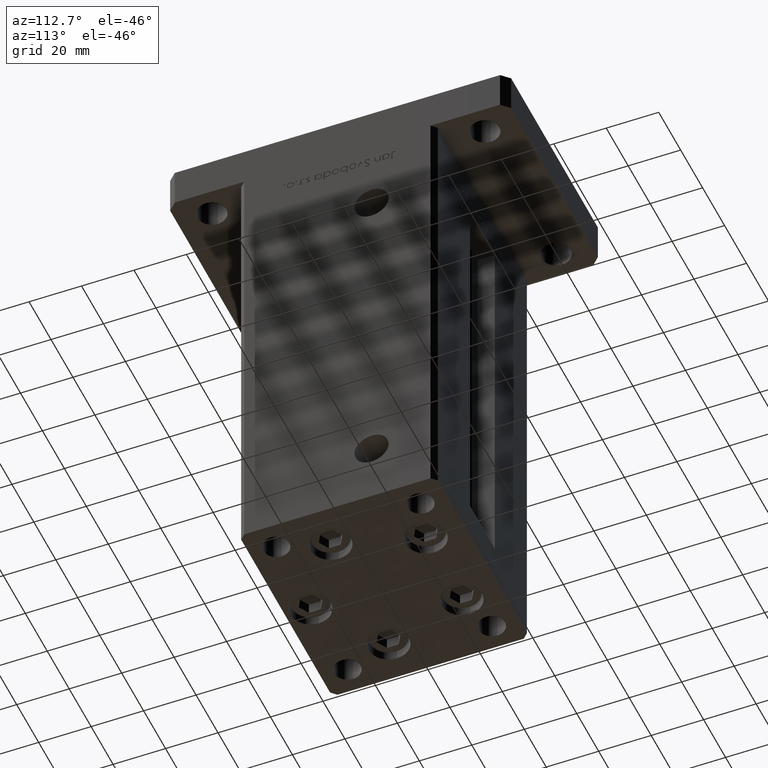
[diagram: clean part render]
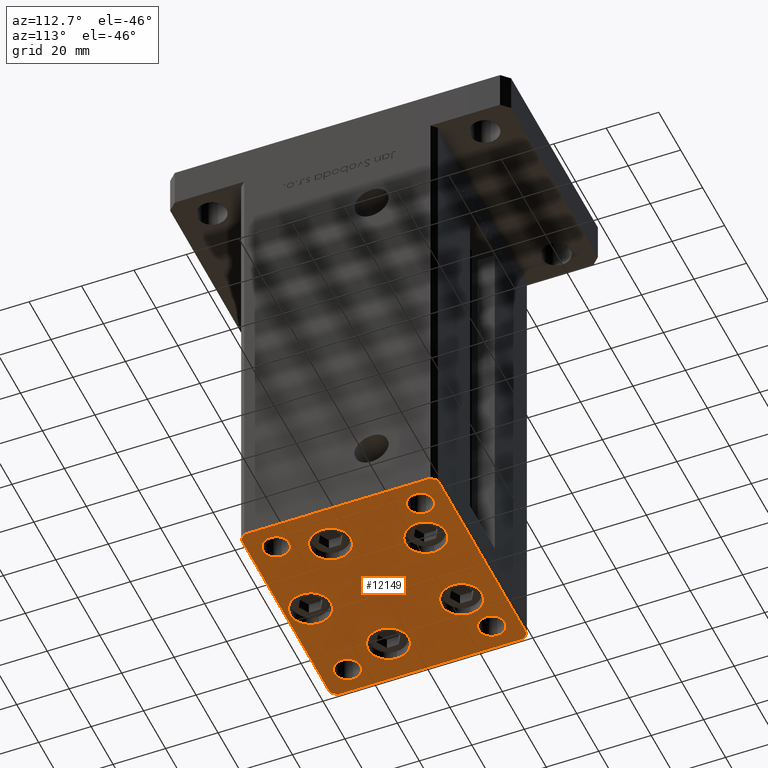
[diagram: same view with one face highlighted and labeled with its STEP entity id]
A machine part, auxiliary view. The second image highlights one B-rep face of the part: STEP entity #12149.
In plain terms, the highlighted planar face has unit normal (0, 0, -1).
Its self-contained STEP definition (entity closure, byte-faithful):
#265 = EDGE_CURVE ( 'NONE', #10591, #37965, #37742, .T. ) ;
#270 = DIRECTION ( 'NONE',  ( 1.000000000000000000, 0.000000000000000000, 0.000000000000000000 ) ) ;
#714 = VERTEX_POINT ( 'NONE', #5208 ) ;
#1335 = VERTEX_POINT ( 'NONE', #14514 ) ;
#1385 = CARTESIAN_POINT ( 'NONE',  ( 32.50000000000000000, 27.49999999999999645, 0.000000000000000000 ) ) ;
#1402 = ORIENTED_EDGE ( 'NONE', *, *, #7961, .T. ) ;
#1739 = AXIS2_PLACEMENT_3D ( 'NONE', #11640, #44157, #32760 ) ;
#1909 = DIRECTION ( 'NONE',  ( 1.000000000000000000, 0.000000000000000000, 0.000000000000000000 ) ) ;
#1948 = CARTESIAN_POINT ( 'NONE',  ( -40.49999999999999289, -37.50000000000002132, 0.000000000000000000 ) ) ;
#1989 = EDGE_LOOP ( 'NONE', ( #23044, #18459 ) ) ;
#1998 = ORIENTED_EDGE ( 'NONE', *, *, #35123, .T. ) ;
#2089 = DIRECTION ( 'NONE',  ( -1.000000000000000000, -3.426614273534436165E-16, 0.000000000000000000 ) ) ;
#2834 = ORIENTED_EDGE ( 'NONE', *, *, #26432, .T. ) ;
#2890 = CARTESIAN_POINT ( 'NONE',  ( 40.49999999999991473, 37.50000000000000711, 0.000000000000000000 ) ) ;
#3804 = CARTESIAN_POINT ( 'NONE',  ( 42.49999999999992895, 35.50000000000000000, 0.000000000000000000 ) ) ;
#4438 = EDGE_CURVE ( 'NONE', #21149, #35975, #44756, .T. ) ;
#4503 = DIRECTION ( 'NONE',  ( 1.000000000000000000, 0.000000000000000000, 0.000000000000000000 ) ) ;
#4515 = VECTOR ( 'NONE', #47894, 1000.000000000000000 ) ;
#4786 = DIRECTION ( 'NONE',  ( 0.000000000000000000, -0.000000000000000000, -1.000000000000000000 ) ) ;
#5208 = CARTESIAN_POINT ( 'NONE',  ( -42.50000000000000000, -35.50000000000000711, 0.000000000000000000 ) ) ;
#5430 = FACE_BOUND ( 'NONE', #1989, .T. ) ;
#5504 = ORIENTED_EDGE ( 'NONE', *, *, #37134, .T. ) ;
#5853 = CARTESIAN_POINT ( 'NONE',  ( 26.39865316429776954, -9.333333333333330373, 0.000000000000000000 ) ) ;
#6002 = ORIENTED_EDGE ( 'NONE', *, *, #24083, .T. ) ;
#6110 = DIRECTION ( 'NONE',  ( 1.000000000000000000, 0.000000000000000000, 0.000000000000000000 ) ) ;
#6248 = DIRECTION ( 'NONE',  ( 0.000000000000000000, -0.000000000000000000, -1.000000000000000000 ) ) ;
#6811 = VERTEX_POINT ( 'NONE', #39123 ) ;
#7185 = CARTESIAN_POINT ( 'NONE',  ( -32.50000000000000000, -27.49999999999999645, 0.000000000000000000 ) ) ;
#7797 = CIRCLE ( 'NONE', #1739, 5.000000000000000888 ) ;
#7961 = EDGE_CURVE ( 'NONE', #33107, #20676, #19266, .T. ) ;
#8758 = ORIENTED_EDGE ( 'NONE', *, *, #50116, .T. ) ;
#9707 = VERTEX_POINT ( 'NONE', #34886 ) ;
#10048 = CARTESIAN_POINT ( 'NONE',  ( -26.39865316429776954, -9.333333333333337478, 0.000000000000000000 ) ) ;
#10055 = DIRECTION ( 'NONE',  ( 0.7071067811865474617, 0.7071067811865474617, 0.000000000000000000 ) ) ;
#10085 = CARTESIAN_POINT ( 'NONE',  ( 16.32291334290542295, 22.75000000000000000, 0.000000000000000000 ) ) ;
#10393 = ORIENTED_EDGE ( 'NONE', *, *, #17101, .T. ) ;
#10514 = VERTEX_POINT ( 'NONE', #27964 ) ;
#10549 = DIRECTION ( 'NONE',  ( 0.000000000000000000, -0.000000000000000000, -1.000000000000000000 ) ) ;
#10567 = FACE_BOUND ( 'NONE', #45288, .T. ) ;
#10584 = CARTESIAN_POINT ( 'NONE',  ( -16.32291334290543006, 22.74999999999999645, 0.000000000000000000 ) ) ;
#10591 = VERTEX_POINT ( 'NONE', #25778 ) ;
#10609 = VERTEX_POINT ( 'NONE', #51499 ) ;
#10650 = VERTEX_POINT ( 'NONE', #35487 ) ;
#10954 = EDGE_LOOP ( 'NONE', ( #5504, #49684 ) ) ;
#11011 = CARTESIAN_POINT ( 'NONE',  ( 26.39865316429776954, -9.333333333333330373, 0.000000000000000000 ) ) ;
#11216 = ORIENTED_EDGE ( 'NONE', *, *, #22793, .T. ) ;
#11267 = DIRECTION ( 'NONE',  ( 1.000000000000000000, 0.000000000000000000, 0.000000000000000000 ) ) ;
#11503 = DIRECTION ( 'NONE',  ( 0.000000000000000000, -0.000000000000000000, -1.000000000000000000 ) ) ;
#11640 = CARTESIAN_POINT ( 'NONE',  ( -32.50000000000000000, 27.50000000000000355, 0.000000000000000000 ) ) ;
#12017 = CARTESIAN_POINT ( 'NONE',  ( -27.50000000000000000, -27.49999999999999645, 0.000000000000000000 ) ) ;
#12019 = AXIS2_PLACEMENT_3D ( 'NONE', #43064, #10549, #27069 ) ;
#12149 = ADVANCED_FACE ( 'NONE', ( #26296, #34436, #5430, #34959, #14359, #51496, #43341, #10567, #27087, #18957 ), #35484, .T. ) ;
#12542 = ORIENTED_EDGE ( 'NONE', *, *, #24576, .T. ) ;
#12815 = DIRECTION ( 'NONE',  ( -0.7071067811865463515, -0.7071067811865487940, 0.000000000000000000 ) ) ;
#13028 = CARTESIAN_POINT ( 'NONE',  ( 7.750000000000003553, -28.00000000000000000, 0.000000000000000000 ) ) ;
#13245 = EDGE_CURVE ( 'NONE', #38086, #24435, #24101, .T. ) ;
#13258 = EDGE_CURVE ( 'NONE', #48522, #40830, #7797, .T. ) ;
#13507 = CARTESIAN_POINT ( 'NONE',  ( 3.429011037612589276E-15, -28.00000000000000000, 0.000000000000000000 ) ) ;
#13577 = EDGE_CURVE ( 'NONE', #37965, #10591, #42427, .T. ) ;
#13626 = ORIENTED_EDGE ( 'NONE', *, *, #16837, .T. ) ;
#14026 = VECTOR ( 'NONE', #10055, 1000.000000000000114 ) ;
#14036 = LINE ( 'NONE', #38179, #16689 ) ;
#14181 = EDGE_CURVE ( 'NONE', #20676, #39960, #14551, .T. ) ;
#14359 = FACE_BOUND ( 'NONE', #30958, .T. ) ;
#14361 = DIRECTION ( 'NONE',  ( 0.000000000000000000, -0.000000000000000000, -1.000000000000000000 ) ) ;
#14514 = CARTESIAN_POINT ( 'NONE',  ( -34.14865316429776954, -9.333333333333337478, 0.000000000000000000 ) ) ;
#14551 = LINE ( 'NONE', #2890, #28127 ) ;
#14826 = CARTESIAN_POINT ( 'NONE',  ( 42.50000000000000711, -35.50000000000000000, 0.000000000000000000 ) ) ;
#14884 = CARTESIAN_POINT ( 'NONE',  ( 0.000000000000000000, 0.000000000000000000, 0.000000000000000000 ) ) ;
#14926 = EDGE_CURVE ( 'NONE', #50900, #6811, #47505, .T. ) ;
#14954 = CARTESIAN_POINT ( 'NONE',  ( 32.50000000000000000, -27.49999999999999645, 0.000000000000000000 ) ) ;
#15771 = EDGE_LOOP ( 'NONE', ( #8758, #45861 ) ) ;
#16033 = CARTESIAN_POINT ( 'NONE',  ( 27.50000000000000355, 27.49999999999999645, 0.000000000000000000 ) ) ;
#16689 = VECTOR ( 'NONE', #42496, 1000.000000000000000 ) ;
#16837 = EDGE_CURVE ( 'NONE', #10609, #43330, #29361, .T. ) ;
#17086 = ORIENTED_EDGE ( 'NONE', *, *, #27339, .T. ) ;
#17101 = EDGE_CURVE ( 'NONE', #1335, #46770, #38913, .T. ) ;
#17242 = CARTESIAN_POINT ( 'NONE',  ( 42.49999999999992895, 35.50000000000000000, 0.000000000000000000 ) ) ;
#17572 = CIRCLE ( 'NONE', #24501, 7.750000000000000000 ) ;
#17645 = AXIS2_PLACEMENT_3D ( 'NONE', #10085, #17664, #33670 ) ;
#17664 = DIRECTION ( 'NONE',  ( 0.000000000000000000, -0.000000000000000000, -1.000000000000000000 ) ) ;
#17709 = CARTESIAN_POINT ( 'NONE',  ( 37.50000000000000000, 27.49999999999999645, 0.000000000000000000 ) ) ;
#17973 = VERTEX_POINT ( 'NONE', #13028 ) ;
#18459 = ORIENTED_EDGE ( 'NONE', *, *, #265, .T. ) ;
#18957 = FACE_BOUND ( 'NONE', #35565, .T. ) ;
#19266 = LINE ( 'NONE', #3804, #48335 ) ;
#19354 = AXIS2_PLACEMENT_3D ( 'NONE', #34835, #51378, #6110 ) ;
#19395 = DIRECTION ( 'NONE',  ( 0.000000000000000000, -0.000000000000000000, -1.000000000000000000 ) ) ;
#19461 = AXIS2_PLACEMENT_3D ( 'NONE', #45520, #29543, #270 ) ;
#19611 = ORIENTED_EDGE ( 'NONE', *, *, #4438, .T. ) ;
#19633 = CARTESIAN_POINT ( 'NONE',  ( 3.429011037612589276E-15, -28.00000000000000000, 0.000000000000000000 ) ) ;
#19651 = DIRECTION ( 'NONE',  ( 0.000000000000000000, -0.000000000000000000, -1.000000000000000000 ) ) ;
#19865 = AXIS2_PLACEMENT_3D ( 'NONE', #35228, #46896, #42817 ) ;
#20274 = VECTOR ( 'NONE', #12815, 1000.000000000000000 ) ;
#20295 = DIRECTION ( 'NONE',  ( 1.000000000000000000, 1.713307136767217096E-16, 0.000000000000000000 ) ) ;
#20676 = VERTEX_POINT ( 'NONE', #23337 ) ;
#21032 = DIRECTION ( 'NONE',  ( 0.000000000000000000, -0.000000000000000000, -1.000000000000000000 ) ) ;
#21149 = VERTEX_POINT ( 'NONE', #29213 ) ;
#21175 = AXIS2_PLACEMENT_3D ( 'NONE', #13507, #38705, #25717 ) ;
#21576 = CARTESIAN_POINT ( 'NONE',  ( 32.50000000000000000, -27.49999999999999645, 0.000000000000000000 ) ) ;
#21963 = DIRECTION ( 'NONE',  ( 1.000000000000000000, 0.000000000000000000, 0.000000000000000000 ) ) ;
#22260 = ORIENTED_EDGE ( 'NONE', *, *, #13258, .F. ) ;
#22793 = EDGE_CURVE ( 'NONE', #43330, #10609, #28685, .T. ) ;
#23044 = ORIENTED_EDGE ( 'NONE', *, *, #13577, .T. ) ;
#23337 = CARTESIAN_POINT ( 'NONE',  ( 40.49999999999991473, 37.50000000000000711, 0.000000000000000000 ) ) ;
#23656 = CIRCLE ( 'NONE', #30585, 4.999999999999997335 ) ;
#23711 = EDGE_CURVE ( 'NONE', #714, #38086, #27896, .T. ) ;
#23735 = DIRECTION ( 'NONE',  ( 1.000000000000000000, 0.000000000000000000, 0.000000000000000000 ) ) ;
#24037 = CARTESIAN_POINT ( 'NONE',  ( -7.749999999999996447, -28.00000000000000000, 0.000000000000000000 ) ) ;
#24083 = EDGE_CURVE ( 'NONE', #9707, #33107, #35429, .T. ) ;
#24101 = LINE ( 'NONE', #36299, #43268 ) ;
#24130 = VERTEX_POINT ( 'NONE', #24037 ) ;
#24162 = DIRECTION ( 'NONE',  ( 1.000000000000000000, 0.000000000000000000, 0.000000000000000000 ) ) ;
#24373 = DIRECTION ( 'NONE',  ( 1.000000000000000000, 0.000000000000000000, 0.000000000000000000 ) ) ;
#24435 = VERTEX_POINT ( 'NONE', #52899 ) ;
#24501 = AXIS2_PLACEMENT_3D ( 'NONE', #10048, #14361, #43085 ) ;
#24576 = EDGE_CURVE ( 'NONE', #24435, #9707, #30382, .T. ) ;
#25188 = EDGE_CURVE ( 'NONE', #35975, #21149, #36529, .T. ) ;
#25306 = ORIENTED_EDGE ( 'NONE', *, *, #32401, .T. ) ;
#25519 = CIRCLE ( 'NONE', #19461, 7.750000000000003553 ) ;
#25542 = VERTEX_POINT ( 'NONE', #17709 ) ;
#25576 = ORIENTED_EDGE ( 'NONE', *, *, #28661, .F. ) ;
#25717 = DIRECTION ( 'NONE',  ( 1.000000000000000000, 0.000000000000000000, 0.000000000000000000 ) ) ;
#25778 = CARTESIAN_POINT ( 'NONE',  ( 34.14865316429776954, -9.333333333333328596, 0.000000000000000000 ) ) ;
#25787 = DIRECTION ( 'NONE',  ( -0.000000000000000000, 0.000000000000000000, 1.000000000000000000 ) ) ;
#25881 = EDGE_CURVE ( 'NONE', #17973, #24130, #45186, .T. ) ;
#26179 = DIRECTION ( 'NONE',  ( 0.000000000000000000, -0.000000000000000000, -1.000000000000000000 ) ) ;
#26180 = CARTESIAN_POINT ( 'NONE',  ( -32.50000000000000000, -27.49999999999999645, 0.000000000000000000 ) ) ;
#26296 = FACE_BOUND ( 'NONE', #38045, .T. ) ;
#26432 = EDGE_CURVE ( 'NONE', #10514, #714, #14036, .T. ) ;
#27069 = DIRECTION ( 'NONE',  ( 1.000000000000000000, 0.000000000000000000, 0.000000000000000000 ) ) ;
#27087 = FACE_OUTER_BOUND ( 'NONE', #37824, .T. ) ;
#27339 = EDGE_CURVE ( 'NONE', #6811, #50900, #39167, .T. ) ;
#27896 = LINE ( 'NONE', #47695, #40814 ) ;
#27964 = CARTESIAN_POINT ( 'NONE',  ( -42.50000000000000711, 35.49999999999997158, 0.000000000000000000 ) ) ;
#28127 = VECTOR ( 'NONE', #2089, 1000.000000000000000 ) ;
#28154 = DIRECTION ( 'NONE',  ( -0.000000000000000000, 0.000000000000000000, 1.000000000000000000 ) ) ;
#28565 = DIRECTION ( 'NONE',  ( 1.000000000000000000, 0.000000000000000000, 0.000000000000000000 ) ) ;
#28661 = EDGE_CURVE ( 'NONE', #42287, #25542, #23656, .T. ) ;
#28685 = CIRCLE ( 'NONE', #39942, 4.999999999999997335 ) ;
#29044 = ORIENTED_EDGE ( 'NONE', *, *, #31723, .F. ) ;
#29213 = CARTESIAN_POINT ( 'NONE',  ( -37.50000000000000711, -27.49999999999999645, 0.000000000000000000 ) ) ;
#29361 = CIRCLE ( 'NONE', #53574, 4.999999999999997335 ) ;
#29543 = DIRECTION ( 'NONE',  ( 0.000000000000000000, -0.000000000000000000, -1.000000000000000000 ) ) ;
#29939 = CARTESIAN_POINT ( 'NONE',  ( -27.50000000000000000, 27.50000000000000355, 0.000000000000000000 ) ) ;
#30086 = AXIS2_PLACEMENT_3D ( 'NONE', #7185, #19651, #11267 ) ;
#30160 = AXIS2_PLACEMENT_3D ( 'NONE', #14884, #46630, #21963 ) ;
#30382 = LINE ( 'NONE', #46378, #14026 ) ;
#30585 = AXIS2_PLACEMENT_3D ( 'NONE', #1385, #25787, #1909 ) ;
#30958 = EDGE_LOOP ( 'NONE', ( #10393, #25306 ) ) ;
#31723 = EDGE_CURVE ( 'NONE', #40830, #48522, #36599, .T. ) ;
#32024 = DIRECTION ( 'NONE',  ( 0.000000000000000000, -0.000000000000000000, -1.000000000000000000 ) ) ;
#32401 = EDGE_CURVE ( 'NONE', #46770, #1335, #17572, .T. ) ;
#32585 = VERTEX_POINT ( 'NONE', #36551 ) ;
#32642 = ORIENTED_EDGE ( 'NONE', *, *, #33267, .F. ) ;
#32760 = DIRECTION ( 'NONE',  ( 1.000000000000000000, 0.000000000000000000, 0.000000000000000000 ) ) ;
#33089 = AXIS2_PLACEMENT_3D ( 'NONE', #26180, #4786, #42440 ) ;
#33107 = VERTEX_POINT ( 'NONE', #17242 ) ;
#33267 = EDGE_CURVE ( 'NONE', #25542, #42287, #42716, .T. ) ;
#33417 = ORIENTED_EDGE ( 'NONE', *, *, #23711, .T. ) ;
#33670 = DIRECTION ( 'NONE',  ( 1.000000000000000000, 0.000000000000000000, 0.000000000000000000 ) ) ;
#34436 = FACE_BOUND ( 'NONE', #10954, .T. ) ;
#34835 = CARTESIAN_POINT ( 'NONE',  ( 32.50000000000000000, 27.49999999999999645, 0.000000000000000000 ) ) ;
#34886 = CARTESIAN_POINT ( 'NONE',  ( 42.50000000000000711, -35.50000000000000000, 0.000000000000000000 ) ) ;
#34959 = FACE_BOUND ( 'NONE', #15771, .T. ) ;
#35123 = EDGE_CURVE ( 'NONE', #39960, #10514, #45595, .T. ) ;
#35228 = CARTESIAN_POINT ( 'NONE',  ( -26.39865316429776954, -9.333333333333337478, 0.000000000000000000 ) ) ;
#35429 = LINE ( 'NONE', #14826, #4515 ) ;
#35484 = PLANE ( 'NONE',  #30160 ) ;
#35487 = CARTESIAN_POINT ( 'NONE',  ( 8.572913342905422951, 22.75000000000000000, 0.000000000000000000 ) ) ;
#35565 = EDGE_LOOP ( 'NONE', ( #43914, #19611 ) ) ;
#35975 = VERTEX_POINT ( 'NONE', #12017 ) ;
#36299 = CARTESIAN_POINT ( 'NONE',  ( -40.49999999999999289, -37.50000000000002132, 0.000000000000000000 ) ) ;
#36529 = CIRCLE ( 'NONE', #33089, 5.000000000000000888 ) ;
#36551 = CARTESIAN_POINT ( 'NONE',  ( 24.07291334290542650, 22.75000000000000000, 0.000000000000000000 ) ) ;
#36599 = CIRCLE ( 'NONE', #43516, 5.000000000000000888 ) ;
#37134 = EDGE_CURVE ( 'NONE', #10650, #32585, #25519, .T. ) ;
#37435 = AXIS2_PLACEMENT_3D ( 'NONE', #19633, #11503, #28565 ) ;
#37742 = CIRCLE ( 'NONE', #53285, 7.750000000000000000 ) ;
#37824 = EDGE_LOOP ( 'NONE', ( #33417, #52441, #12542, #6002, #1402, #40485, #1998, #2834 ) ) ;
#37965 = VERTEX_POINT ( 'NONE', #53189 ) ;
#38045 = EDGE_LOOP ( 'NONE', ( #17086, #52334 ) ) ;
#38086 = VERTEX_POINT ( 'NONE', #1948 ) ;
#38179 = CARTESIAN_POINT ( 'NONE',  ( -42.50000000000000711, 35.49999999999997158, 0.000000000000000000 ) ) ;
#38705 = DIRECTION ( 'NONE',  ( 0.000000000000000000, -0.000000000000000000, -1.000000000000000000 ) ) ;
#38852 = CARTESIAN_POINT ( 'NONE',  ( -8.572913342905431833, 22.74999999999999645, 0.000000000000000000 ) ) ;
#38913 = CIRCLE ( 'NONE', #19865, 7.750000000000000000 ) ;
#39123 = CARTESIAN_POINT ( 'NONE',  ( -24.07291334290543006, 22.74999999999999645, 0.000000000000000000 ) ) ;
#39167 = CIRCLE ( 'NONE', #45220, 7.750000000000000000 ) ;
#39346 = CIRCLE ( 'NONE', #21175, 7.750000000000000000 ) ;
#39942 = AXIS2_PLACEMENT_3D ( 'NONE', #21576, #21032, #4503 ) ;
#39960 = VERTEX_POINT ( 'NONE', #52762 ) ;
#40485 = ORIENTED_EDGE ( 'NONE', *, *, #14181, .T. ) ;
#40655 = DIRECTION ( 'NONE',  ( -0.7071067811865474617, 0.7071067811865474617, 0.000000000000000000 ) ) ;
#40814 = VECTOR ( 'NONE', #52568, 1000.000000000000000 ) ;
#40830 = VERTEX_POINT ( 'NONE', #49567 ) ;
#41129 = CARTESIAN_POINT ( 'NONE',  ( -18.64865316429776954, -9.333333333333335702, 0.000000000000000000 ) ) ;
#41303 = EDGE_LOOP ( 'NONE', ( #32642, #25576 ) ) ;
#42287 = VERTEX_POINT ( 'NONE', #16033 ) ;
#42427 = CIRCLE ( 'NONE', #51949, 7.750000000000000000 ) ;
#42440 = DIRECTION ( 'NONE',  ( 1.000000000000000000, 0.000000000000000000, 0.000000000000000000 ) ) ;
#42496 = DIRECTION ( 'NONE',  ( 9.773090005503140331E-17, -1.000000000000000000, 0.000000000000000000 ) ) ;
#42689 = EDGE_LOOP ( 'NONE', ( #13626, #11216 ) ) ;
#42716 = CIRCLE ( 'NONE', #19354, 4.999999999999997335 ) ;
#42817 = DIRECTION ( 'NONE',  ( 1.000000000000000000, 0.000000000000000000, 0.000000000000000000 ) ) ;
#43064 = CARTESIAN_POINT ( 'NONE',  ( -16.32291334290543006, 22.74999999999999645, 0.000000000000000000 ) ) ;
#43085 = DIRECTION ( 'NONE',  ( 1.000000000000000000, 0.000000000000000000, 0.000000000000000000 ) ) ;
#43268 = VECTOR ( 'NONE', #20295, 1000.000000000000000 ) ;
#43330 = VERTEX_POINT ( 'NONE', #52331 ) ;
#43341 = FACE_BOUND ( 'NONE', #42689, .T. ) ;
#43516 = AXIS2_PLACEMENT_3D ( 'NONE', #45761, #28154, #45481 ) ;
#43914 = ORIENTED_EDGE ( 'NONE', *, *, #25188, .T. ) ;
#44157 = DIRECTION ( 'NONE',  ( -0.000000000000000000, 0.000000000000000000, 1.000000000000000000 ) ) ;
#44756 = CIRCLE ( 'NONE', #30086, 5.000000000000000888 ) ;
#45186 = CIRCLE ( 'NONE', #37435, 7.750000000000000000 ) ;
#45220 = AXIS2_PLACEMENT_3D ( 'NONE', #10584, #6248, #24373 ) ;
#45288 = EDGE_LOOP ( 'NONE', ( #22260, #29044 ) ) ;
#45481 = DIRECTION ( 'NONE',  ( 1.000000000000000000, 0.000000000000000000, 0.000000000000000000 ) ) ;
#45520 = CARTESIAN_POINT ( 'NONE',  ( 16.32291334290542295, 22.75000000000000000, 0.000000000000000000 ) ) ;
#45595 = LINE ( 'NONE', #49948, #20274 ) ;
#45761 = CARTESIAN_POINT ( 'NONE',  ( -32.50000000000000000, 27.50000000000000355, 0.000000000000000000 ) ) ;
#45861 = ORIENTED_EDGE ( 'NONE', *, *, #25881, .T. ) ;
#46378 = CARTESIAN_POINT ( 'NONE',  ( 40.50000000000000000, -37.50000000000000711, 0.000000000000000000 ) ) ;
#46630 = DIRECTION ( 'NONE',  ( -0.000000000000000000, 0.000000000000000000, 1.000000000000000000 ) ) ;
#46770 = VERTEX_POINT ( 'NONE', #41129 ) ;
#46896 = DIRECTION ( 'NONE',  ( 0.000000000000000000, -0.000000000000000000, -1.000000000000000000 ) ) ;
#47505 = CIRCLE ( 'NONE', #12019, 7.750000000000000000 ) ;
#47580 = DIRECTION ( 'NONE',  ( 1.000000000000000000, 0.000000000000000000, 0.000000000000000000 ) ) ;
#47695 = CARTESIAN_POINT ( 'NONE',  ( -42.50000000000000000, -35.50000000000000711, 0.000000000000000000 ) ) ;
#47894 = DIRECTION ( 'NONE',  ( -1.172770800660376741E-15, 1.000000000000000000, 0.000000000000000000 ) ) ;
#48335 = VECTOR ( 'NONE', #40655, 1000.000000000000114 ) ;
#48522 = VERTEX_POINT ( 'NONE', #29939 ) ;
#48727 = EDGE_CURVE ( 'NONE', #32585, #10650, #51430, .T. ) ;
#49567 = CARTESIAN_POINT ( 'NONE',  ( -37.50000000000000711, 27.50000000000000355, 0.000000000000000000 ) ) ;
#49684 = ORIENTED_EDGE ( 'NONE', *, *, #48727, .T. ) ;
#49948 = CARTESIAN_POINT ( 'NONE',  ( -40.50000000000000711, 37.49999999999997868, 0.000000000000000000 ) ) ;
#50116 = EDGE_CURVE ( 'NONE', #24130, #17973, #39346, .T. ) ;
#50900 = VERTEX_POINT ( 'NONE', #38852 ) ;
#51378 = DIRECTION ( 'NONE',  ( -0.000000000000000000, 0.000000000000000000, 1.000000000000000000 ) ) ;
#51430 = CIRCLE ( 'NONE', #17645, 7.750000000000003553 ) ;
#51496 = FACE_BOUND ( 'NONE', #41303, .T. ) ;
#51499 = CARTESIAN_POINT ( 'NONE',  ( 37.50000000000000000, -27.49999999999999645, 0.000000000000000000 ) ) ;
#51949 = AXIS2_PLACEMENT_3D ( 'NONE', #5853, #26179, #47580 ) ;
#52331 = CARTESIAN_POINT ( 'NONE',  ( 27.50000000000000355, -27.49999999999999645, 0.000000000000000000 ) ) ;
#52334 = ORIENTED_EDGE ( 'NONE', *, *, #14926, .T. ) ;
#52441 = ORIENTED_EDGE ( 'NONE', *, *, #13245, .T. ) ;
#52568 = DIRECTION ( 'NONE',  ( 0.7071067811865463515, -0.7071067811865487940, 0.000000000000000000 ) ) ;
#52762 = CARTESIAN_POINT ( 'NONE',  ( -40.50000000000000711, 37.49999999999997868, 0.000000000000000000 ) ) ;
#52899 = CARTESIAN_POINT ( 'NONE',  ( 40.50000000000000000, -37.50000000000000711, 0.000000000000000000 ) ) ;
#53189 = CARTESIAN_POINT ( 'NONE',  ( 18.64865316429776954, -9.333333333333330373, 0.000000000000000000 ) ) ;
#53285 = AXIS2_PLACEMENT_3D ( 'NONE', #11011, #19395, #23735 ) ;
#53574 = AXIS2_PLACEMENT_3D ( 'NONE', #14954, #32024, #24162 ) ;